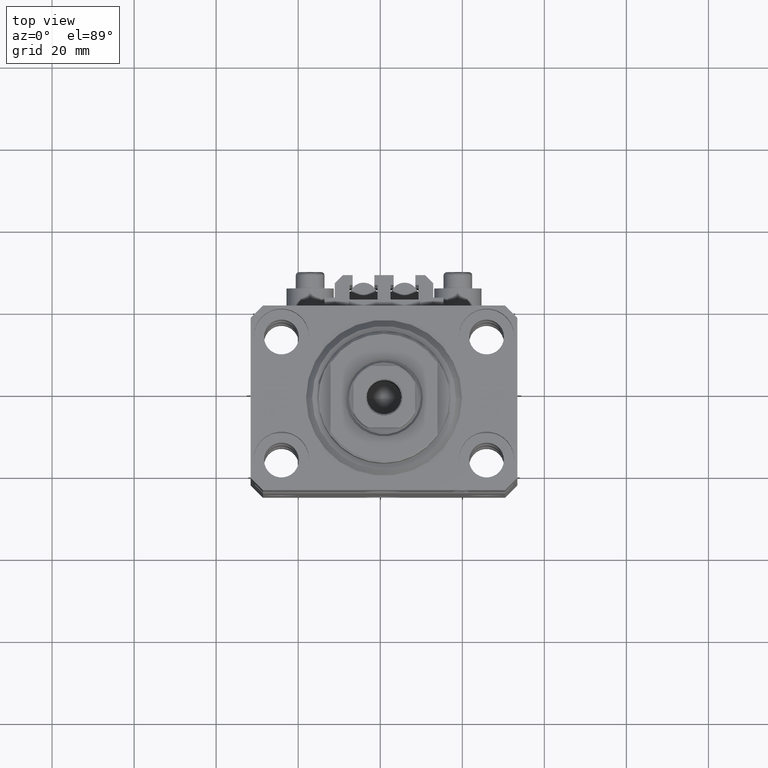
[diagram: clean part render]
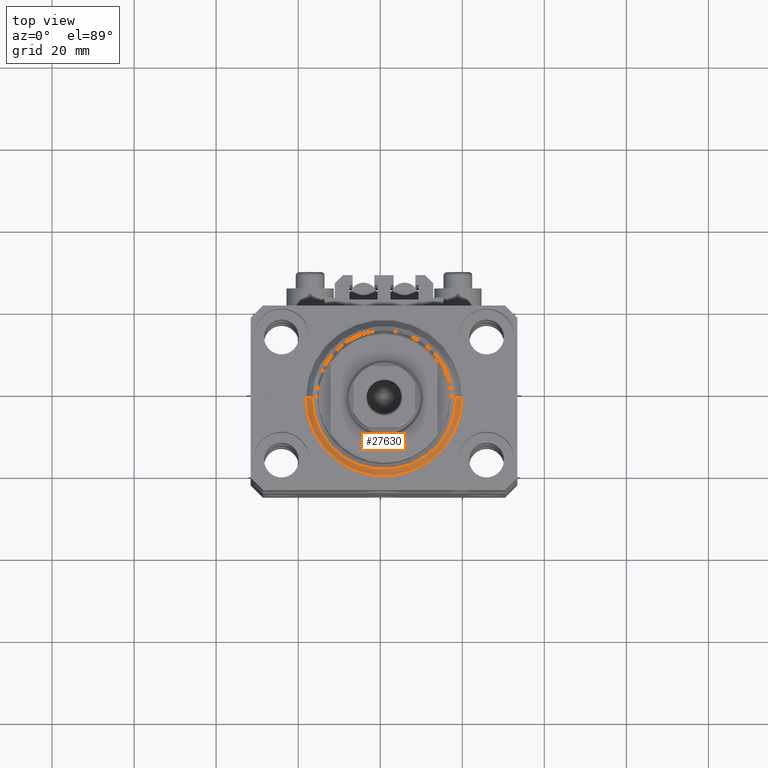
[diagram: same view with one face highlighted and labeled with its STEP entity id]
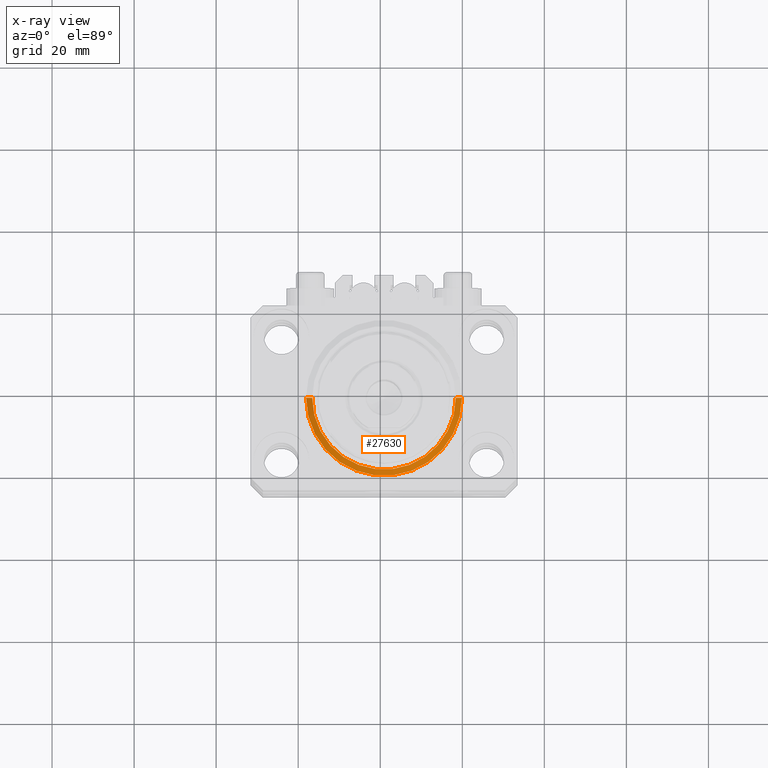
[diagram: x-ray of the same camera — body ghosted, the highlighted face saturated]
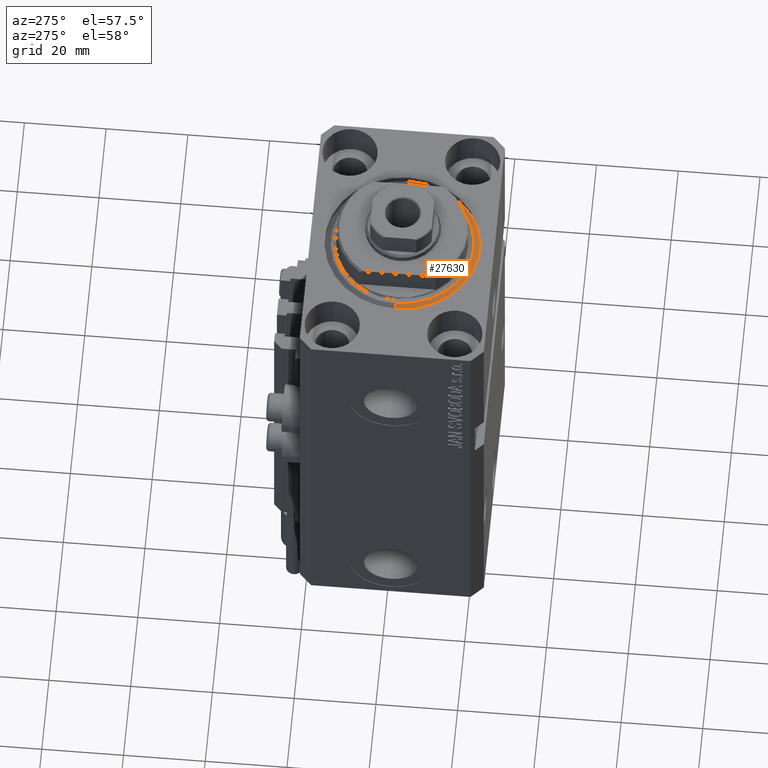
[diagram: same view with one face highlighted and labeled with its STEP entity id]
A machine part, top view. The second image highlights one B-rep face of the part: STEP entity #27630.
The next image is the same camera in x-ray: the body ghosted, the highlighted face saturated — about 0% of this face is hidden behind the body in this view.
A second angle (auxiliary view) of the same face is appended — the face is thin or edge-on in the first view.
In plain terms, the highlighted conical surface has half-angle 45 deg.
Its self-contained STEP definition (entity closure, byte-faithful):
#353 = CONICAL_SURFACE ( 'NONE', #28093, 19.00000000000000000, 0.7853981633974492782 ) ;
#796 = CIRCLE ( 'NONE', #15857, 19.00000000000000000 ) ;
#1707 = ORIENTED_EDGE ( 'NONE', *, *, #11768, .T. ) ;
#2998 = AXIS2_PLACEMENT_3D ( 'NONE', #36769, #6989, #40733 ) ;
#5004 = VERTEX_POINT ( 'NONE', #37846 ) ;
#5552 = EDGE_LOOP ( 'NONE', ( #6864, #20025, #1707, #28049 ) ) ;
#6864 = ORIENTED_EDGE ( 'NONE', *, *, #20602, .F. ) ;
#6989 = DIRECTION ( 'NONE',  ( -0.000000000000000000, -0.000000000000000000, -1.000000000000000000 ) ) ;
#7896 = VECTOR ( 'NONE', #24597, 1000.000000000000000 ) ;
#10191 = CARTESIAN_POINT ( 'NONE',  ( 19.00000000000000000, 0.000000000000000000, 1.500000000000004885 ) ) ;
#11516 = VERTEX_POINT ( 'NONE', #45686 ) ;
#11768 = EDGE_CURVE ( 'NONE', #23462, #11516, #13672, .T. ) ;
#12292 = DIRECTION ( 'NONE',  ( -0.000000000000000000, -0.000000000000000000, 1.000000000000000000 ) ) ;
#13672 = LINE ( 'NONE', #10191, #7896 ) ;
#15775 = DIRECTION ( 'NONE',  ( 1.000000000000000000, 0.000000000000000000, 0.000000000000000000 ) ) ;
#15857 = AXIS2_PLACEMENT_3D ( 'NONE', #23835, #31762, #39443 ) ;
#16263 = CARTESIAN_POINT ( 'NONE',  ( 0.000000000000000000, 0.000000000000000000, 1.500000000000004885 ) ) ;
#17126 = CARTESIAN_POINT ( 'NONE',  ( 17.49999999999999289, 0.000000000000000000, 0.000000000000000000 ) ) ;
#20025 = ORIENTED_EDGE ( 'NONE', *, *, #36967, .F. ) ;
#20602 = EDGE_CURVE ( 'NONE', #45406, #5004, #40383, .T. ) ;
#23462 = VERTEX_POINT ( 'NONE', #17126 ) ;
#23523 = CARTESIAN_POINT ( 'NONE',  ( -17.49999999999999289, 2.234980408443919215E-15, 0.000000000000000000 ) ) ;
#23835 = CARTESIAN_POINT ( 'NONE',  ( 0.000000000000000000, 0.000000000000000000, 1.500000000000004885 ) ) ;
#24597 = DIRECTION ( 'NONE',  ( 0.7071067811865483499, 0.000000000000000000, 0.7071067811865467956 ) ) ;
#27630 = ADVANCED_FACE ( 'NONE', ( #46036 ), #353, .T. ) ;
#28049 = ORIENTED_EDGE ( 'NONE', *, *, #45871, .F. ) ;
#28093 = AXIS2_PLACEMENT_3D ( 'NONE', #16263, #12292, #15775 ) ;
#31762 = DIRECTION ( 'NONE',  ( -0.000000000000000000, -0.000000000000000000, 1.000000000000000000 ) ) ;
#32936 = DIRECTION ( 'NONE',  ( -0.7071067811865483499, 8.659560562354943952E-17, 0.7071067811865467956 ) ) ;
#36769 = CARTESIAN_POINT ( 'NONE',  ( 0.000000000000000000, 0.000000000000000000, 0.000000000000000000 ) ) ;
#36967 = EDGE_CURVE ( 'NONE', #23462, #45406, #39422, .T. ) ;
#37846 = CARTESIAN_POINT ( 'NONE',  ( -19.00000000000000000, 0.000000000000000000, 1.500000000000004885 ) ) ;
#38271 = VECTOR ( 'NONE', #32936, 1000.000000000000000 ) ;
#39422 = CIRCLE ( 'NONE', #2998, 17.49999999999999289 ) ;
#39443 = DIRECTION ( 'NONE',  ( 1.000000000000000000, 0.000000000000000000, 0.000000000000000000 ) ) ;
#40383 = LINE ( 'NONE', #44837, #38271 ) ;
#40733 = DIRECTION ( 'NONE',  ( 1.000000000000000000, 0.000000000000000000, 0.000000000000000000 ) ) ;
#44837 = CARTESIAN_POINT ( 'NONE',  ( -19.00000000000000000, 2.326828918379970970E-15, 1.500000000000004885 ) ) ;
#45406 = VERTEX_POINT ( 'NONE', #23523 ) ;
#45686 = CARTESIAN_POINT ( 'NONE',  ( 19.00000000000000000, 2.326828918379970970E-15, 1.500000000000004885 ) ) ;
#45871 = EDGE_CURVE ( 'NONE', #5004, #11516, #796, .T. ) ;
#46036 = FACE_OUTER_BOUND ( 'NONE', #5552, .T. ) ;